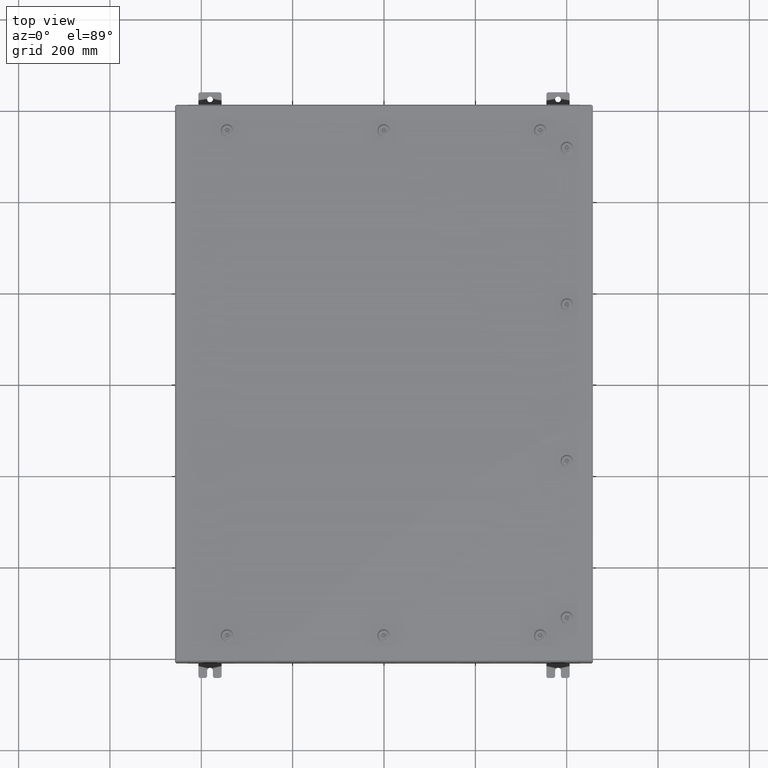
[diagram: clean part render]
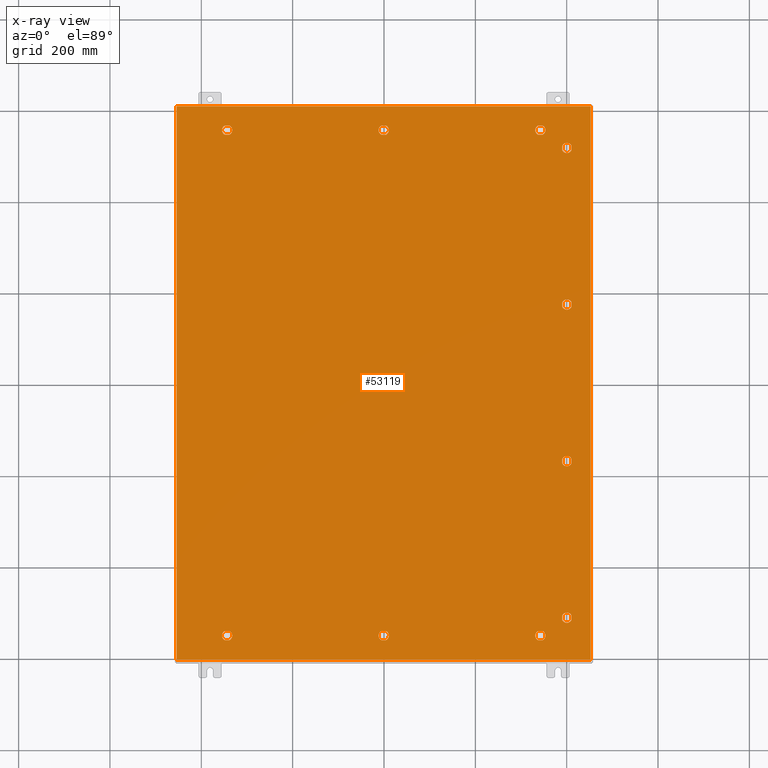
[diagram: x-ray — body ghosted, one internal face saturated and labeled with its STEP entity id]
A machine part, top view, then the same camera in x-ray: the body is ghosted and one INTERNAL B-rep face — a face not visible from any outside direction — is saturated and labeled: STEP entity #53119.
In plain terms, the highlighted planar face has unit normal (0, 0, -1).
Its self-contained STEP definition (entity closure, byte-faithful):
#118 = CARTESIAN_POINT ( 'NONE',  ( 13.30054762473209400, 22.18280000000000000, -0.07470000000000000300 ) ) ;
#576 = CIRCLE ( 'NONE', #50289, 0.4424999999999983400 ) ;
#693 = ORIENTED_EDGE ( 'NONE', *, *, #51285, .T. ) ;
#894 = CARTESIAN_POINT ( 'NONE',  ( 17.84980000000000200, 23.84980000000000900, -0.07469999999999804600 ) ) ;
#898 = CARTESIAN_POINT ( 'NONE',  ( -13.49999999999998600, -21.78780000000000800, -0.07470000000000003000 ) ) ;
#926 = EDGE_CURVE ( 'NONE', #6399, #20693, #43322, .T. ) ;
#997 = VERTEX_POINT ( 'NONE', #16040 ) ;
#1005 = EDGE_CURVE ( 'NONE', #35302, #9886, #10050, .T. ) ;
#1017 = DIRECTION ( 'NONE',  ( -0.0000000000000000000, -0.0000000000000000000, 1.000000000000000000 ) ) ;
#1114 = CARTESIAN_POINT ( 'NONE',  ( 15.39280000000002200, 20.44945237526790300, -0.07470000000000003000 ) ) ;
#1698 = EDGE_CURVE ( 'NONE', #50904, #28340, #21644, .T. ) ;
#1716 = CARTESIAN_POINT ( 'NONE',  ( 15.39280000000002800, -20.44945237526790300, -0.07470000000000000300 ) ) ;
#2137 = ORIENTED_EDGE ( 'NONE', *, *, #56101, .T. ) ;
#2264 = AXIS2_PLACEMENT_3D ( 'NONE', #49831, #18072, #55144 ) ;
#3138 = CARTESIAN_POINT ( 'NONE',  ( 16.18280000000001500, 20.05054762473213300, -0.07470000000000003000 ) ) ;
#3294 = EDGE_CURVE ( 'NONE', #31489, #39283, #47285, .T. ) ;
#3396 = CARTESIAN_POINT ( 'NONE',  ( 16.18280000000001500, -20.44945237526789600, -0.07470000000000003000 ) ) ;
#3532 = FACE_BOUND ( 'NONE', #34064, .T. ) ;
#3757 = CARTESIAN_POINT ( 'NONE',  ( 15.78780000000001000, 6.750000000000014200, -0.07470000000000003000 ) ) ;
#4213 = VERTEX_POINT ( 'NONE', #21417 ) ;
#4220 = EDGE_CURVE ( 'NONE', #20693, #45547, #17337, .T. ) ;
#4327 = LINE ( 'NONE', #21996, #30979 ) ;
#4363 = DIRECTION ( 'NONE',  ( -0.0000000000000000000, -0.0000000000000000000, 1.000000000000000000 ) ) ;
#4378 = AXIS2_PLACEMENT_3D ( 'NONE', #52407, #20655, #57747 ) ;
#4548 = AXIS2_PLACEMENT_3D ( 'NONE', #36226, #4363, #41554 ) ;
#4618 = EDGE_CURVE ( 'NONE', #19191, #63562, #43058, .T. ) ;
#4887 = PLANE ( 'NONE',  #58248 ) ;
#5031 = ORIENTED_EDGE ( 'NONE', *, *, #1005, .T. ) ;
#5147 = CARTESIAN_POINT ( 'NONE',  ( -13.30054762473210400, -21.39280000000001500, -0.07470000000000003000 ) ) ;
#5186 = FACE_BOUND ( 'NONE', #46680, .T. ) ;
#5246 = CARTESIAN_POINT ( 'NONE',  ( 13.49999999999998600, 21.78780000000000400, -0.07470000000000003000 ) ) ;
#5261 = CARTESIAN_POINT ( 'NONE',  ( -0.1994523752678689600, 21.39280000000001200, -0.07470000000000003000 ) ) ;
#5414 = DIRECTION ( 'NONE',  ( -0.0000000000000000000, -0.0000000000000000000, 1.000000000000000000 ) ) ;
#5461 = CIRCLE ( 'NONE', #68524, 0.4424999999999961700 ) ;
#5474 = CARTESIAN_POINT ( 'NONE',  ( 0.1994523752678995500, 21.39280000000001200, -0.07470000000000003000 ) ) ;
#5600 = ORIENTED_EDGE ( 'NONE', *, *, #52427, .T. ) ;
#5697 = AXIS2_PLACEMENT_3D ( 'NONE', #11630, #48765, #16985 ) ;
#5839 = EDGE_LOOP ( 'NONE', ( #26656, #18586, #39259, #67918 ) ) ;
#6031 = CARTESIAN_POINT ( 'NONE',  ( -13.30054762473210200, 21.39280000000001200, -0.07470000000000003000 ) ) ;
#6201 = AXIS2_PLACEMENT_3D ( 'NONE', #5246, #42447, #10606 ) ;
#6241 = DIRECTION ( 'NONE',  ( -1.000000000000000000, 0.0000000000000000000, 0.0000000000000000000 ) ) ;
#6256 = VERTEX_POINT ( 'NONE', #30214 ) ;
#6399 = VERTEX_POINT ( 'NONE', #68203 ) ;
#6496 = CARTESIAN_POINT ( 'NONE',  ( 13.30054762473210400, -21.39280000000001200, -0.07470000000000003000 ) ) ;
#6544 = VERTEX_POINT ( 'NONE', #49621 ) ;
#6591 = DIRECTION ( 'NONE',  ( -0.0000000000000000000, -0.0000000000000000000, 1.000000000000000000 ) ) ;
#6898 = LINE ( 'NONE', #65947, #33551 ) ;
#6978 = ORIENTED_EDGE ( 'NONE', *, *, #27407, .T. ) ;
#7052 = ORIENTED_EDGE ( 'NONE', *, *, #52000, .T. ) ;
#7072 = DIRECTION ( 'NONE',  ( -0.0000000000000000000, -0.0000000000000000000, 1.000000000000000000 ) ) ;
#7169 = CARTESIAN_POINT ( 'NONE',  ( 16.18280000000000700, 6.949452375267900300, -0.07470000000000000300 ) ) ;
#7281 = EDGE_CURVE ( 'NONE', #44440, #38383, #576, .T. ) ;
#7517 = VECTOR ( 'NONE', #63209, 39.37007874015748100 ) ;
#7828 = DIRECTION ( 'NONE',  ( -1.095739467627835000E-014, -1.000000000000000000, 0.0000000000000000000 ) ) ;
#8290 = CARTESIAN_POINT ( 'NONE',  ( 16.18280000000000700, -6.550547624732131700, -0.07470000000000003000 ) ) ;
#8489 = EDGE_CURVE ( 'NONE', #9886, #19191, #36297, .T. ) ;
#8534 = DIRECTION ( 'NONE',  ( -0.0000000000000000000, -0.0000000000000000000, 1.000000000000000000 ) ) ;
#8806 = CARTESIAN_POINT ( 'NONE',  ( 16.18280000000001100, 20.44945237526789600, -0.07470000000000000300 ) ) ;
#9121 = DIRECTION ( 'NONE',  ( -1.000000000000000000, 2.469467112916857400E-015, 0.0000000000000000000 ) ) ;
#9213 = CIRCLE ( 'NONE', #55199, 0.4424999999999961700 ) ;
#9513 = DIRECTION ( 'NONE',  ( -0.0000000000000000000, -0.0000000000000000000, 1.000000000000000000 ) ) ;
#9743 = VERTEX_POINT ( 'NONE', #65859 ) ;
#9747 = ORIENTED_EDGE ( 'NONE', *, *, #32311, .T. ) ;
#9819 = ORIENTED_EDGE ( 'NONE', *, *, #27081, .T. ) ;
#9886 = VERTEX_POINT ( 'NONE', #8290 ) ;
#9970 = CIRCLE ( 'NONE', #4378, 0.4424999999999983400 ) ;
#10005 = EDGE_CURVE ( 'NONE', #19665, #6256, #66018, .T. ) ;
#10050 = LINE ( 'NONE', #64058, #24222 ) ;
#10302 = LINE ( 'NONE', #36376, #51016 ) ;
#10606 = DIRECTION ( 'NONE',  ( -1.000000000000000000, 0.0000000000000000000, 0.0000000000000000000 ) ) ;
#11116 = CARTESIAN_POINT ( 'NONE',  ( 15.78780000000001800, -20.25000000000001400, -0.07470000000000003000 ) ) ;
#11121 = CARTESIAN_POINT ( 'NONE',  ( 16.18280000000000400, -6.949452375267900300, -0.07470000000000003000 ) ) ;
#11265 = ORIENTED_EDGE ( 'NONE', *, *, #25221, .T. ) ;
#11443 = DIRECTION ( 'NONE',  ( -1.000000000000000000, -9.877868451667478400E-015, 0.0000000000000000000 ) ) ;
#11630 = CARTESIAN_POINT ( 'NONE',  ( -13.49999999999998600, -21.78780000000000800, -0.07470000000000003000 ) ) ;
#12010 = VERTEX_POINT ( 'NONE', #34243 ) ;
#12026 = CIRCLE ( 'NONE', #32867, 0.4424999999999972800 ) ;
#12199 = EDGE_LOOP ( 'NONE', ( #50229, #67184, #32986, #5031 ) ) ;
#12288 = DIRECTION ( 'NONE',  ( -5.478697338139235000E-015, 1.000000000000000000, 0.0000000000000000000 ) ) ;
#12373 = CIRCLE ( 'NONE', #6201, 0.4424999999999961700 ) ;
#12708 = DIRECTION ( 'NONE',  ( -1.000000000000000000, 1.095739467627836300E-014, 0.0000000000000000000 ) ) ;
#12726 = ORIENTED_EDGE ( 'NONE', *, *, #52195, .T. ) ;
#12943 = CARTESIAN_POINT ( 'NONE',  ( 13.49999999999998600, -21.78780000000000400, -0.07470000000000003000 ) ) ;
#13127 = AXIS2_PLACEMENT_3D ( 'NONE', #38930, #7072, #44268 ) ;
#13270 = EDGE_CURVE ( 'NONE', #17480, #33218, #41752, .T. ) ;
#13364 = DIRECTION ( 'NONE',  ( -1.000000000000000000, 1.095739467627832000E-014, 0.0000000000000000000 ) ) ;
#13626 = VECTOR ( 'NONE', #37797, 39.37007874015748100 ) ;
#13700 = EDGE_CURVE ( 'NONE', #21605, #42336, #42556, .T. ) ;
#14012 = VECTOR ( 'NONE', #52965, 39.37007874015748100 ) ;
#14396 = VECTOR ( 'NONE', #35281, 39.37007874015748100 ) ;
#14903 = CARTESIAN_POINT ( 'NONE',  ( 0.4425000000000125500, 21.78780000000000400, -0.07470000000000003000 ) ) ;
#14942 = AXIS2_PLACEMENT_3D ( 'NONE', #898, #38086, #6241 ) ;
#15083 = LINE ( 'NONE', #6031, #55773 ) ;
#15550 = EDGE_CURVE ( 'NONE', #63562, #35302, #50899, .T. ) ;
#15555 = ORIENTED_EDGE ( 'NONE', *, *, #10005, .T. ) ;
#15631 = LINE ( 'NONE', #17360, #43902 ) ;
#15778 = EDGE_CURVE ( 'NONE', #6544, #58645, #55966, .T. ) ;
#16040 = CARTESIAN_POINT ( 'NONE',  ( 17.84980000000000200, -23.84979999999999800, -0.07470000000000000300 ) ) ;
#16054 = LINE ( 'NONE', #3396, #14396 ) ;
#16372 = VECTOR ( 'NONE', #13364, 39.37007874015748100 ) ;
#16441 = CIRCLE ( 'NONE', #14942, 0.4424999999999961700 ) ;
#16474 = DIRECTION ( 'NONE',  ( -1.000000000000000000, 0.0000000000000000000, 0.0000000000000000000 ) ) ;
#16525 = EDGE_CURVE ( 'NONE', #19251, #12010, #64200, .T. ) ;
#16848 = VERTEX_POINT ( 'NONE', #29508 ) ;
#16937 = ORIENTED_EDGE ( 'NONE', *, *, #15778, .T. ) ;
#16985 = DIRECTION ( 'NONE',  ( -1.000000000000000000, 0.0000000000000000000, 0.0000000000000000000 ) ) ;
#17337 = LINE ( 'NONE', #58287, #14012 ) ;
#17360 = CARTESIAN_POINT ( 'NONE',  ( 15.39280000000002800, -20.44945237526790300, -0.07470000000000003000 ) ) ;
#17414 = CARTESIAN_POINT ( 'NONE',  ( 13.69945237526786900, -22.18280000000000400, -0.07470000000000003000 ) ) ;
#17480 = VERTEX_POINT ( 'NONE', #58184 ) ;
#17656 = EDGE_CURVE ( 'NONE', #4213, #997, #4327, .T. ) ;
#17685 = FACE_BOUND ( 'NONE', #47716, .T. ) ;
#17728 = CIRCLE ( 'NONE', #51620, 0.4424999999999983400 ) ;
#18072 = DIRECTION ( 'NONE',  ( -0.0000000000000000000, -0.0000000000000000000, 1.000000000000000000 ) ) ;
#18322 = VERTEX_POINT ( 'NONE', #36515 ) ;
#18336 = DIRECTION ( 'NONE',  ( -1.000000000000000000, 0.0000000000000000000, 0.0000000000000000000 ) ) ;
#18385 = CARTESIAN_POINT ( 'NONE',  ( 15.39280000000002200, -20.05054762473213300, -0.07470000000000003000 ) ) ;
#18586 = ORIENTED_EDGE ( 'NONE', *, *, #17656, .F. ) ;
#18811 = CARTESIAN_POINT ( 'NONE',  ( -13.49999999999998600, 21.78780000000000400, -0.07470000000000003000 ) ) ;
#18868 = ORIENTED_EDGE ( 'NONE', *, *, #50906, .T. ) ;
#19019 = ORIENTED_EDGE ( 'NONE', *, *, #34710, .T. ) ;
#19191 = VERTEX_POINT ( 'NONE', #53203 ) ;
#19198 = CARTESIAN_POINT ( 'NONE',  ( 1.529834876451987200E-014, -21.78780000000000400, -0.07470000000000003000 ) ) ;
#19251 = VERTEX_POINT ( 'NONE', #43038 ) ;
#19387 = FACE_BOUND ( 'NONE', #23863, .T. ) ;
#19539 = LINE ( 'NONE', #6496, #31964 ) ;
#19665 = VERTEX_POINT ( 'NONE', #14903 ) ;
#19676 = VECTOR ( 'NONE', #52613, 39.37007874015748100 ) ;
#20553 = AXIS2_PLACEMENT_3D ( 'NONE', #57111, #25357, #62452 ) ;
#20577 = CARTESIAN_POINT ( 'NONE',  ( 13.30054762473210200, 21.39280000000001200, -0.07470000000000003000 ) ) ;
#20644 = ORIENTED_EDGE ( 'NONE', *, *, #63918, .T. ) ;
#20655 = DIRECTION ( 'NONE',  ( -0.0000000000000000000, -0.0000000000000000000, 1.000000000000000000 ) ) ;
#20693 = VERTEX_POINT ( 'NONE', #39908 ) ;
#21074 = ORIENTED_EDGE ( 'NONE', *, *, #7281, .T. ) ;
#21252 = LINE ( 'NONE', #1114, #33746 ) ;
#21314 = VERTEX_POINT ( 'NONE', #8806 ) ;
#21417 = CARTESIAN_POINT ( 'NONE',  ( -17.84979999999999800, -23.84979999999999800, -0.07470000000000000300 ) ) ;
#21495 = ORIENTED_EDGE ( 'NONE', *, *, #31507, .T. ) ;
#21605 = VERTEX_POINT ( 'NONE', #53084 ) ;
#21644 = LINE ( 'NONE', #26103, #7517 ) ;
#21819 = CARTESIAN_POINT ( 'NONE',  ( 15.39280000000001900, 6.949452375267904700, -0.07470000000000003000 ) ) ;
#21860 = CARTESIAN_POINT ( 'NONE',  ( -13.05749999999998900, 21.78780000000000400, -0.07470000000000003000 ) ) ;
#21996 = CARTESIAN_POINT ( 'NONE',  ( -17.84979999999999800, -23.84980000000000200, -0.07469999999999804600 ) ) ;
#22807 = CARTESIAN_POINT ( 'NONE',  ( -17.84979999999999500, 23.84980000000000900, -0.07470000000000129300 ) ) ;
#23412 = CARTESIAN_POINT ( 'NONE',  ( 0.1994523752679067700, 22.18280000000000000, -0.07470000000000003000 ) ) ;
#23863 = EDGE_LOOP ( 'NONE', ( #20644, #7052, #44761, #28893 ) ) ;
#23937 = DIRECTION ( 'NONE',  ( 1.000000000000000000, 0.0000000000000000000, 0.0000000000000000000 ) ) ;
#24017 = VERTEX_POINT ( 'NONE', #67947 ) ;
#24222 = VECTOR ( 'NONE', #32304, 39.37007874015748100 ) ;
#24395 = CARTESIAN_POINT ( 'NONE',  ( 1.529834876451987200E-014, 21.78780000000000400, -0.07470000000000003000 ) ) ;
#24437 = AXIS2_PLACEMENT_3D ( 'NONE', #29956, #67040, #35299 ) ;
#24530 = DIRECTION ( 'NONE',  ( -1.000000000000000000, 9.877868451667453200E-015, 0.0000000000000000000 ) ) ;
#24683 = ORIENTED_EDGE ( 'NONE', *, *, #58083, .T. ) ;
#24701 = ORIENTED_EDGE ( 'NONE', *, *, #34854, .T. ) ;
#24884 = VECTOR ( 'NONE', #37337, 39.37007874015748100 ) ;
#24989 = DIRECTION ( 'NONE',  ( -1.000000000000000000, 0.0000000000000000000, 0.0000000000000000000 ) ) ;
#25101 = DIRECTION ( 'NONE',  ( -1.000000000000000000, 0.0000000000000000000, 0.0000000000000000000 ) ) ;
#25152 = VERTEX_POINT ( 'NONE', #54025 ) ;
#25221 = EDGE_CURVE ( 'NONE', #16848, #27234, #5461, .T. ) ;
#25357 = DIRECTION ( 'NONE',  ( -0.0000000000000000000, -0.0000000000000000000, 1.000000000000000000 ) ) ;
#25491 = CARTESIAN_POINT ( 'NONE',  ( 1.529834876451987200E-014, 21.78780000000000400, -0.07470000000000003000 ) ) ;
#25553 = CARTESIAN_POINT ( 'NONE',  ( 13.69945237526786900, 21.39280000000001200, -0.07470000000000003000 ) ) ;
#25734 = VECTOR ( 'NONE', #12288, 39.37007874015748100 ) ;
#25787 = VECTOR ( 'NONE', #12708, 39.37007874015748100 ) ;
#26066 = EDGE_CURVE ( 'NONE', #25152, #33864, #60203, .T. ) ;
#26103 = CARTESIAN_POINT ( 'NONE',  ( 0.1994523752679067700, -22.18280000000000000, -0.07470000000000003000 ) ) ;
#26274 = CARTESIAN_POINT ( 'NONE',  ( 0.0000000000000000000, 0.0000000000000000000, -0.07470000000000000300 ) ) ;
#26375 = CARTESIAN_POINT ( 'NONE',  ( -13.30054762473209500, -22.18280000000000400, -0.07470000000000000300 ) ) ;
#26420 = ORIENTED_EDGE ( 'NONE', *, *, #1698, .T. ) ;
#26656 = ORIENTED_EDGE ( 'NONE', *, *, #33141, .F. ) ;
#26766 = DIRECTION ( 'NONE',  ( -0.0000000000000000000, -0.0000000000000000000, 1.000000000000000000 ) ) ;
#26983 = CARTESIAN_POINT ( 'NONE',  ( 0.4425000000000125500, -21.78780000000000400, -0.07470000000000003000 ) ) ;
#27081 = EDGE_CURVE ( 'NONE', #65210, #6399, #19539, .T. ) ;
#27234 = VERTEX_POINT ( 'NONE', #18385 ) ;
#27281 = VECTOR ( 'NONE', #24989, 39.37007874015748100 ) ;
#27341 = DIRECTION ( 'NONE',  ( 1.000000000000000000, -0.0000000000000000000, -0.0000000000000000000 ) ) ;
#27407 = EDGE_CURVE ( 'NONE', #55666, #65210, #30081, .T. ) ;
#27617 = CARTESIAN_POINT ( 'NONE',  ( 15.78780000000001500, 20.25000000000001400, -0.07470000000000003000 ) ) ;
#27824 = CIRCLE ( 'NONE', #59027, 0.4424999999999961700 ) ;
#27825 = CARTESIAN_POINT ( 'NONE',  ( 15.78780000000001800, -20.25000000000001400, -0.07470000000000003000 ) ) ;
#28020 = DIRECTION ( 'NONE',  ( 1.095739467627844000E-014, -1.000000000000000000, 0.0000000000000000000 ) ) ;
#28340 = VERTEX_POINT ( 'NONE', #37449 ) ;
#28449 = CARTESIAN_POINT ( 'NONE',  ( 1.529834876451987200E-014, -21.78780000000000400, -0.07470000000000003000 ) ) ;
#28770 = CARTESIAN_POINT ( 'NONE',  ( 15.39280000000001400, 6.550547624732131700, -0.07470000000000003000 ) ) ;
#28893 = ORIENTED_EDGE ( 'NONE', *, *, #3294, .T. ) ;
#29083 = CARTESIAN_POINT ( 'NONE',  ( -13.05749999999999000, -21.78780000000000800, -0.07470000000000003000 ) ) ;
#29161 = ORIENTED_EDGE ( 'NONE', *, *, #4220, .T. ) ;
#29199 = CARTESIAN_POINT ( 'NONE',  ( -13.30054762473209400, 22.18280000000000000, -0.07470000000000003000 ) ) ;
#29397 = VERTEX_POINT ( 'NONE', #55627 ) ;
#29508 = CARTESIAN_POINT ( 'NONE',  ( 16.18280000000001800, -20.05054762473213300, -0.07470000000000003000 ) ) ;
#29746 = DIRECTION ( 'NONE',  ( -1.000000000000000000, 9.877868451667453200E-015, 0.0000000000000000000 ) ) ;
#29956 = CARTESIAN_POINT ( 'NONE',  ( 15.78780000000000800, -6.750000000000014200, -0.07470000000000003000 ) ) ;
#30081 = CIRCLE ( 'NONE', #4548, 0.4424999999999983400 ) ;
#30214 = CARTESIAN_POINT ( 'NONE',  ( 0.1994523752679049900, 22.18280000000000000, -0.07470000000000003000 ) ) ;
#30339 = CARTESIAN_POINT ( 'NONE',  ( -13.30054762473210400, -21.39280000000001500, -0.07470000000000003000 ) ) ;
#30341 = VECTOR ( 'NONE', #65039, 39.37007874015748100 ) ;
#30533 = LINE ( 'NONE', #29199, #16372 ) ;
#30630 = VECTOR ( 'NONE', #61541, 39.37007874015748100 ) ;
#30831 = DIRECTION ( 'NONE',  ( -1.000000000000000000, 0.0000000000000000000, 0.0000000000000000000 ) ) ;
#30979 = VECTOR ( 'NONE', #27341, 39.37007874015748100 ) ;
#31118 = EDGE_CURVE ( 'NONE', #27234, #37159, #15631, .T. ) ;
#31319 = CIRCLE ( 'NONE', #35447, 0.4424999999999961700 ) ;
#31489 = VERTEX_POINT ( 'NONE', #21819 ) ;
#31507 = EDGE_CURVE ( 'NONE', #47799, #40107, #16441, .T. ) ;
#31565 = VERTEX_POINT ( 'NONE', #38319 ) ;
#31632 = DIRECTION ( 'NONE',  ( -1.000000000000000000, 0.0000000000000000000, -0.0000000000000000000 ) ) ;
#31685 = VERTEX_POINT ( 'NONE', #55191 ) ;
#31813 = FACE_BOUND ( 'NONE', #48481, .T. ) ;
#31846 = DIRECTION ( 'NONE',  ( -0.0000000000000000000, -0.0000000000000000000, 1.000000000000000000 ) ) ;
#31964 = VECTOR ( 'NONE', #38350, 39.37007874015748100 ) ;
#32304 = DIRECTION ( 'NONE',  ( 5.478697338139235000E-015, 1.000000000000000000, 0.0000000000000000000 ) ) ;
#32311 = EDGE_CURVE ( 'NONE', #9743, #31685, #30533, .T. ) ;
#32867 = AXIS2_PLACEMENT_3D ( 'NONE', #28449, #65556, #33816 ) ;
#32886 = CARTESIAN_POINT ( 'NONE',  ( -13.49999999999998600, 21.78780000000000400, -0.07470000000000003000 ) ) ;
#32982 = DIRECTION ( 'NONE',  ( -1.095739467627844000E-014, -1.000000000000000000, 0.0000000000000000000 ) ) ;
#32986 = ORIENTED_EDGE ( 'NONE', *, *, #15550, .T. ) ;
#32990 = DIRECTION ( 'NONE',  ( -1.000000000000000000, 0.0000000000000000000, 0.0000000000000000000 ) ) ;
#33088 = ORIENTED_EDGE ( 'NONE', *, *, #67862, .T. ) ;
#33141 = EDGE_CURVE ( 'NONE', #997, #19251, #47851, .T. ) ;
#33213 = DIRECTION ( 'NONE',  ( -1.000000000000000000, 0.0000000000000000000, 0.0000000000000000000 ) ) ;
#33218 = VERTEX_POINT ( 'NONE', #5261 ) ;
#33221 = VECTOR ( 'NONE', #7828, 39.37007874015748100 ) ;
#33551 = VECTOR ( 'NONE', #55487, 39.37007874015748100 ) ;
#33746 = VECTOR ( 'NONE', #32982, 39.37007874015748100 ) ;
#33816 = DIRECTION ( 'NONE',  ( -1.000000000000000000, 0.0000000000000000000, 0.0000000000000000000 ) ) ;
#33864 = VERTEX_POINT ( 'NONE', #3138 ) ;
#33996 = CIRCLE ( 'NONE', #53967, 0.4424999999999972800 ) ;
#34064 = EDGE_LOOP ( 'NONE', ( #19019, #2137, #693, #67622, #9747 ) ) ;
#34089 = CARTESIAN_POINT ( 'NONE',  ( -13.69945237526786900, -22.18280000000000700, -0.07470000000000003000 ) ) ;
#34243 = CARTESIAN_POINT ( 'NONE',  ( -17.84979999999999500, 23.84980000000000200, -0.07470000000000000300 ) ) ;
#34539 = CIRCLE ( 'NONE', #37175, 0.4424999999999983400 ) ;
#34609 = AXIS2_PLACEMENT_3D ( 'NONE', #41357, #9513, #46666 ) ;
#34641 = CARTESIAN_POINT ( 'NONE',  ( 13.30054762473210200, 21.39280000000001200, -0.07470000000000003000 ) ) ;
#34710 = EDGE_CURVE ( 'NONE', #31685, #44377, #27824, .T. ) ;
#34854 = EDGE_CURVE ( 'NONE', #28340, #41757, #12026, .T. ) ;
#35085 = CIRCLE ( 'NONE', #67939, 0.4424999999999983400 ) ;
#35281 = DIRECTION ( 'NONE',  ( 5.478697338139280800E-015, 1.000000000000000000, 0.0000000000000000000 ) ) ;
#35299 = DIRECTION ( 'NONE',  ( -1.000000000000000000, 0.0000000000000000000, 0.0000000000000000000 ) ) ;
#35302 = VERTEX_POINT ( 'NONE', #11121 ) ;
#35428 = EDGE_CURVE ( 'NONE', #49095, #25152, #21252, .T. ) ;
#35447 = AXIS2_PLACEMENT_3D ( 'NONE', #27617, #64741, #32990 ) ;
#36040 = VECTOR ( 'NONE', #64506, 39.37007874015748100 ) ;
#36065 = AXIS2_PLACEMENT_3D ( 'NONE', #24395, #61489, #29746 ) ;
#36152 = DIRECTION ( 'NONE',  ( -1.000000000000000000, -1.095739467627832000E-014, 0.0000000000000000000 ) ) ;
#36226 = CARTESIAN_POINT ( 'NONE',  ( 13.49999999999998600, -21.78780000000000400, -0.07470000000000003000 ) ) ;
#36297 = CIRCLE ( 'NONE', #2264, 0.4424999999999983400 ) ;
#36376 = CARTESIAN_POINT ( 'NONE',  ( 13.30054762473209400, 22.18280000000000000, -0.07470000000000003000 ) ) ;
#36515 = CARTESIAN_POINT ( 'NONE',  ( 16.18280000000001500, -20.44945237526789600, -0.07470000000000003000 ) ) ;
#37028 = EDGE_CURVE ( 'NONE', #31565, #44440, #10302, .T. ) ;
#37159 = VERTEX_POINT ( 'NONE', #1716 ) ;
#37164 = ORIENTED_EDGE ( 'NONE', *, *, #35428, .T. ) ;
#37175 = AXIS2_PLACEMENT_3D ( 'NONE', #18811, #55898, #25101 ) ;
#37237 = VECTOR ( 'NONE', #23937, 39.37007874015748100 ) ;
#37280 = CARTESIAN_POINT ( 'NONE',  ( 13.49999999999998600, 21.78780000000000400, -0.07470000000000003000 ) ) ;
#37337 = DIRECTION ( 'NONE',  ( 1.000000000000000000, 0.0000000000000000000, 0.0000000000000000000 ) ) ;
#37449 = CARTESIAN_POINT ( 'NONE',  ( 0.1994523752679054600, -22.18280000000000400, -0.07470000000000000300 ) ) ;
#37523 = CARTESIAN_POINT ( 'NONE',  ( 13.69945237526787100, -21.39280000000001200, -0.07470000000000003000 ) ) ;
#37797 = DIRECTION ( 'NONE',  ( -1.000000000000000000, 0.0000000000000000000, 0.0000000000000000000 ) ) ;
#38086 = DIRECTION ( 'NONE',  ( -0.0000000000000000000, -0.0000000000000000000, 1.000000000000000000 ) ) ;
#38203 = EDGE_CURVE ( 'NONE', #18322, #16848, #16054, .T. ) ;
#38207 = CARTESIAN_POINT ( 'NONE',  ( -13.30054762473210200, 21.39280000000001200, -0.07470000000000000300 ) ) ;
#38214 = DIRECTION ( 'NONE',  ( -1.000000000000000000, 0.0000000000000000000, 0.0000000000000000000 ) ) ;
#38319 = CARTESIAN_POINT ( 'NONE',  ( 13.69945237526786700, 22.18280000000000400, -0.07470000000000003000 ) ) ;
#38350 = DIRECTION ( 'NONE',  ( -1.000000000000000000, 0.0000000000000000000, 0.0000000000000000000 ) ) ;
#38383 = VERTEX_POINT ( 'NONE', #20577 ) ;
#38431 = CARTESIAN_POINT ( 'NONE',  ( 13.49999999999998600, 21.78780000000000400, -0.07470000000000003000 ) ) ;
#38930 = CARTESIAN_POINT ( 'NONE',  ( 1.529834876451987200E-014, -21.78780000000000400, -0.07470000000000003000 ) ) ;
#39259 = ORIENTED_EDGE ( 'NONE', *, *, #46222, .F. ) ;
#39283 = VERTEX_POINT ( 'NONE', #28770 ) ;
#39675 = CARTESIAN_POINT ( 'NONE',  ( 15.39280000000001900, 6.949452375267904700, -0.07470000000000003000 ) ) ;
#39858 = ORIENTED_EDGE ( 'NONE', *, *, #43728, .T. ) ;
#39908 = CARTESIAN_POINT ( 'NONE',  ( 13.30054762473209500, -22.18280000000000000, -0.07470000000000003000 ) ) ;
#39985 = CARTESIAN_POINT ( 'NONE',  ( 15.39280000000002200, 20.44945237526790300, -0.07470000000000003000 ) ) ;
#40107 = VERTEX_POINT ( 'NONE', #29083 ) ;
#40280 = EDGE_LOOP ( 'NONE', ( #62816, #50152, #12726, #15555, #24683 ) ) ;
#40369 = CARTESIAN_POINT ( 'NONE',  ( 15.78780000000001000, 6.750000000000014200, -0.07470000000000003000 ) ) ;
#40960 = DIRECTION ( 'NONE',  ( -0.0000000000000000000, -0.0000000000000000000, 1.000000000000000000 ) ) ;
#41044 = ORIENTED_EDGE ( 'NONE', *, *, #60771, .T. ) ;
#41306 = LINE ( 'NONE', #62011, #42957 ) ;
#41324 = ORIENTED_EDGE ( 'NONE', *, *, #55315, .T. ) ;
#41354 = EDGE_CURVE ( 'NONE', #41757, #6544, #33996, .T. ) ;
#41357 = CARTESIAN_POINT ( 'NONE',  ( -13.49999999999998600, -21.78780000000000800, -0.07470000000000003000 ) ) ;
#41381 = EDGE_LOOP ( 'NONE', ( #64264, #59267, #21495, #18868, #43985 ) ) ;
#41554 = DIRECTION ( 'NONE',  ( -1.000000000000000000, 0.0000000000000000000, 0.0000000000000000000 ) ) ;
#41752 = CIRCLE ( 'NONE', #65653, 0.4424999999999969000 ) ;
#41757 = VERTEX_POINT ( 'NONE', #26983 ) ;
#41944 = ORIENTED_EDGE ( 'NONE', *, *, #26066, .T. ) ;
#42314 = LINE ( 'NONE', #5474, #24884 ) ;
#42336 = VERTEX_POINT ( 'NONE', #34089 ) ;
#42438 = CARTESIAN_POINT ( 'NONE',  ( -13.69945237526786900, 21.39280000000001200, -0.07470000000000003000 ) ) ;
#42447 = DIRECTION ( 'NONE',  ( -0.0000000000000000000, -0.0000000000000000000, 1.000000000000000000 ) ) ;
#42556 = CIRCLE ( 'NONE', #34609, 0.4424999999999983400 ) ;
#42616 = DIRECTION ( 'NONE',  ( -1.000000000000000000, 0.0000000000000000000, 0.0000000000000000000 ) ) ;
#42684 = CARTESIAN_POINT ( 'NONE',  ( 0.1994523752678995500, -21.39280000000001200, -0.07470000000000003000 ) ) ;
#42957 = VECTOR ( 'NONE', #67352, 39.37007874015748100 ) ;
#43038 = CARTESIAN_POINT ( 'NONE',  ( 17.84980000000000200, 23.84980000000000200, -0.07470000000000000300 ) ) ;
#43058 = LINE ( 'NONE', #61316, #30630 ) ;
#43322 = CIRCLE ( 'NONE', #67871, 0.4424999999999961700 ) ;
#43399 = EDGE_CURVE ( 'NONE', #42336, #47799, #41306, .T. ) ;
#43609 = ORIENTED_EDGE ( 'NONE', *, *, #59703, .T. ) ;
#43728 = EDGE_CURVE ( 'NONE', #21314, #49095, #31319, .T. ) ;
#43773 = DIRECTION ( 'NONE',  ( -1.000000000000000000, 0.0000000000000000000, 0.0000000000000000000 ) ) ;
#43854 = ORIENTED_EDGE ( 'NONE', *, *, #926, .T. ) ;
#43902 = VECTOR ( 'NONE', #28020, 39.37007874015748100 ) ;
#43985 = ORIENTED_EDGE ( 'NONE', *, *, #59995, .T. ) ;
#44123 = CARTESIAN_POINT ( 'NONE',  ( 16.18280000000000700, 6.949452375267900300, -0.07470000000000003000 ) ) ;
#44268 = DIRECTION ( 'NONE',  ( -1.000000000000000000, 0.0000000000000000000, 0.0000000000000000000 ) ) ;
#44274 = FACE_OUTER_BOUND ( 'NONE', #5839, .T. ) ;
#44377 = VERTEX_POINT ( 'NONE', #42438 ) ;
#44435 = LINE ( 'NONE', #22807, #30341 ) ;
#44440 = VERTEX_POINT ( 'NONE', #118 ) ;
#44761 = ORIENTED_EDGE ( 'NONE', *, *, #66369, .T. ) ;
#44764 = LINE ( 'NONE', #30339, #27281 ) ;
#45357 = CARTESIAN_POINT ( 'NONE',  ( 13.94249999999998500, -21.78780000000000400, -0.07470000000000003000 ) ) ;
#45547 = VERTEX_POINT ( 'NONE', #17414 ) ;
#45660 = ORIENTED_EDGE ( 'NONE', *, *, #37028, .T. ) ;
#45683 = EDGE_CURVE ( 'NONE', #50845, #9743, #34539, .T. ) ;
#45710 = DIRECTION ( 'NONE',  ( -1.000000000000000000, 0.0000000000000000000, 0.0000000000000000000 ) ) ;
#45938 = FACE_BOUND ( 'NONE', #41381, .T. ) ;
#46113 = ORIENTED_EDGE ( 'NONE', *, *, #49667, .T. ) ;
#46222 = EDGE_CURVE ( 'NONE', #12010, #4213, #44435, .T. ) ;
#46666 = DIRECTION ( 'NONE',  ( -1.000000000000000000, 0.0000000000000000000, 0.0000000000000000000 ) ) ;
#46680 = EDGE_LOOP ( 'NONE', ( #11265, #61394, #33088, #62736 ) ) ;
#47285 = LINE ( 'NONE', #39675, #33221 ) ;
#47569 = FACE_BOUND ( 'NONE', #57891, .T. ) ;
#47716 = EDGE_LOOP ( 'NONE', ( #5600, #41324, #45660, #21074, #41044 ) ) ;
#47799 = VERTEX_POINT ( 'NONE', #26375 ) ;
#47851 = LINE ( 'NONE', #57726, #19676 ) ;
#47888 = CARTESIAN_POINT ( 'NONE',  ( 15.39280000000001500, -6.949452375267905600, -0.07470000000000000300 ) ) ;
#48108 = VERTEX_POINT ( 'NONE', #59951 ) ;
#48139 = AXIS2_PLACEMENT_3D ( 'NONE', #25491, #62577, #30831 ) ;
#48192 = CIRCLE ( 'NONE', #5697, 0.4424999999999961700 ) ;
#48255 = DIRECTION ( 'NONE',  ( -0.0000000000000000000, -0.0000000000000000000, 1.000000000000000000 ) ) ;
#48481 = EDGE_LOOP ( 'NONE', ( #43609, #26420, #24701, #68473, #16937 ) ) ;
#48765 = DIRECTION ( 'NONE',  ( -0.0000000000000000000, -0.0000000000000000000, 1.000000000000000000 ) ) ;
#49095 = VERTEX_POINT ( 'NONE', #39985 ) ;
#49621 = CARTESIAN_POINT ( 'NONE',  ( 0.1994523752679002700, -21.39280000000001200, -0.07470000000000003000 ) ) ;
#49667 = EDGE_CURVE ( 'NONE', #45547, #55666, #35085, .T. ) ;
#49831 = CARTESIAN_POINT ( 'NONE',  ( 15.78780000000000800, -6.750000000000014200, -0.07470000000000003000 ) ) ;
#50080 = DIRECTION ( 'NONE',  ( -0.0000000000000000000, -0.0000000000000000000, 1.000000000000000000 ) ) ;
#50152 = ORIENTED_EDGE ( 'NONE', *, *, #52478, .T. ) ;
#50229 = ORIENTED_EDGE ( 'NONE', *, *, #8489, .T. ) ;
#50289 = AXIS2_PLACEMENT_3D ( 'NONE', #38431, #6591, #43773 ) ;
#50845 = VERTEX_POINT ( 'NONE', #21860 ) ;
#50899 = CIRCLE ( 'NONE', #24437, 0.4424999999999983400 ) ;
#50904 = VERTEX_POINT ( 'NONE', #53857 ) ;
#50906 = EDGE_CURVE ( 'NONE', #40107, #68873, #48192, .T. ) ;
#51016 = VECTOR ( 'NONE', #36152, 39.37007874015748100 ) ;
#51285 = EDGE_CURVE ( 'NONE', #66782, #50845, #9970, .T. ) ;
#51620 = AXIS2_PLACEMENT_3D ( 'NONE', #40369, #8534, #45710 ) ;
#51905 = CIRCLE ( 'NONE', #63563, 0.4424999999999983400 ) ;
#52000 = EDGE_CURVE ( 'NONE', #24017, #53402, #53906, .T. ) ;
#52195 = EDGE_CURVE ( 'NONE', #29397, #19665, #61411, .T. ) ;
#52407 = CARTESIAN_POINT ( 'NONE',  ( -13.49999999999998600, 21.78780000000000400, -0.07470000000000003000 ) ) ;
#52427 = EDGE_CURVE ( 'NONE', #62247, #48108, #12373, .T. ) ;
#52478 = EDGE_CURVE ( 'NONE', #33218, #29397, #42314, .T. ) ;
#52540 = FACE_BOUND ( 'NONE', #12199, .T. ) ;
#52613 = DIRECTION ( 'NONE',  ( 0.0000000000000000000, 1.000000000000000000, 0.0000000000000000000 ) ) ;
#52965 = DIRECTION ( 'NONE',  ( 1.000000000000000000, -1.095739467627832000E-014, 0.0000000000000000000 ) ) ;
#53084 = CARTESIAN_POINT ( 'NONE',  ( -13.69945237526787100, -21.39280000000001500, -0.07470000000000003000 ) ) ;
#53119 = ADVANCED_FACE ( 'NONE', ( #5186, #52540, #47569, #19387, #59989, #45938, #31813, #17685, #3532, #58324, #44274 ), #4887, .T. ) ;
#53203 = CARTESIAN_POINT ( 'NONE',  ( 15.39280000000001200, -6.550547624732131700, -0.07470000000000003000 ) ) ;
#53402 = VERTEX_POINT ( 'NONE', #7169 ) ;
#53857 = CARTESIAN_POINT ( 'NONE',  ( -0.1994523752678657700, -22.18280000000000400, -0.07470000000000003000 ) ) ;
#53906 = LINE ( 'NONE', #44123, #25734 ) ;
#53967 = AXIS2_PLACEMENT_3D ( 'NONE', #19198, #56286, #24530 ) ;
#54025 = CARTESIAN_POINT ( 'NONE',  ( 15.39280000000001900, 20.05054762473213300, -0.07470000000000003000 ) ) ;
#55144 = DIRECTION ( 'NONE',  ( -1.000000000000000000, 0.0000000000000000000, 0.0000000000000000000 ) ) ;
#55191 = CARTESIAN_POINT ( 'NONE',  ( -13.69945237526786700, 22.18280000000000400, -0.07470000000000003000 ) ) ;
#55199 = AXIS2_PLACEMENT_3D ( 'NONE', #37280, #5414, #42616 ) ;
#55315 = EDGE_CURVE ( 'NONE', #48108, #31565, #9213, .T. ) ;
#55487 = DIRECTION ( 'NONE',  ( -5.478697338139280800E-015, 1.000000000000000000, 0.0000000000000000000 ) ) ;
#55627 = CARTESIAN_POINT ( 'NONE',  ( 0.1994523752678995500, 21.39280000000001200, -0.07470000000000000300 ) ) ;
#55666 = VERTEX_POINT ( 'NONE', #45357 ) ;
#55773 = VECTOR ( 'NONE', #64520, 39.37007874015748100 ) ;
#55898 = DIRECTION ( 'NONE',  ( -0.0000000000000000000, -0.0000000000000000000, 1.000000000000000000 ) ) ;
#55966 = LINE ( 'NONE', #42684, #13626 ) ;
#56101 = EDGE_CURVE ( 'NONE', #44377, #66782, #15083, .T. ) ;
#56286 = DIRECTION ( 'NONE',  ( -0.0000000000000000000, -0.0000000000000000000, 1.000000000000000000 ) ) ;
#57111 = CARTESIAN_POINT ( 'NONE',  ( 15.78780000000001500, 20.25000000000001400, -0.07470000000000003000 ) ) ;
#57726 = CARTESIAN_POINT ( 'NONE',  ( 17.84980000000000200, -23.84980000000000200, -0.07470000000000019700 ) ) ;
#57747 = DIRECTION ( 'NONE',  ( -1.000000000000000000, 0.0000000000000000000, 0.0000000000000000000 ) ) ;
#57891 = EDGE_LOOP ( 'NONE', ( #41944, #61851, #39858, #37164 ) ) ;
#58083 = EDGE_CURVE ( 'NONE', #6256, #17480, #68102, .T. ) ;
#58184 = CARTESIAN_POINT ( 'NONE',  ( -0.1994523752678657700, 22.18280000000000400, -0.07470000000000003000 ) ) ;
#58248 = AXIS2_PLACEMENT_3D ( 'NONE', #26274, #63391, #31632 ) ;
#58287 = CARTESIAN_POINT ( 'NONE',  ( 13.30054762473209500, -22.18280000000000000, -0.07470000000000003000 ) ) ;
#58324 = FACE_BOUND ( 'NONE', #40280, .T. ) ;
#58520 = CARTESIAN_POINT ( 'NONE',  ( 1.529834876451987200E-014, 21.78780000000000400, -0.07470000000000003000 ) ) ;
#58645 = VERTEX_POINT ( 'NONE', #67887 ) ;
#59027 = AXIS2_PLACEMENT_3D ( 'NONE', #32886, #1017, #38214 ) ;
#59267 = ORIENTED_EDGE ( 'NONE', *, *, #43399, .T. ) ;
#59703 = EDGE_CURVE ( 'NONE', #58645, #50904, #62181, .T. ) ;
#59951 = CARTESIAN_POINT ( 'NONE',  ( 13.94249999999998300, 21.78780000000000400, -0.07470000000000003000 ) ) ;
#59989 = FACE_BOUND ( 'NONE', #64701, .T. ) ;
#59995 = EDGE_CURVE ( 'NONE', #68873, #21605, #44764, .T. ) ;
#60203 = CIRCLE ( 'NONE', #20553, 0.4424999999999961700 ) ;
#60771 = EDGE_CURVE ( 'NONE', #38383, #62247, #63765, .T. ) ;
#61316 = CARTESIAN_POINT ( 'NONE',  ( 15.39280000000001500, -6.949452375267904700, -0.07470000000000003000 ) ) ;
#61394 = ORIENTED_EDGE ( 'NONE', *, *, #31118, .T. ) ;
#61411 = CIRCLE ( 'NONE', #36065, 0.4424999999999972800 ) ;
#61489 = DIRECTION ( 'NONE',  ( -0.0000000000000000000, -0.0000000000000000000, 1.000000000000000000 ) ) ;
#61541 = DIRECTION ( 'NONE',  ( 1.095739467627835000E-014, -1.000000000000000000, 0.0000000000000000000 ) ) ;
#61851 = ORIENTED_EDGE ( 'NONE', *, *, #66286, .T. ) ;
#62011 = CARTESIAN_POINT ( 'NONE',  ( -13.30054762473209500, -22.18280000000000400, -0.07470000000000003000 ) ) ;
#62181 = CIRCLE ( 'NONE', #13127, 0.4424999999999969000 ) ;
#62247 = VERTEX_POINT ( 'NONE', #25553 ) ;
#62452 = DIRECTION ( 'NONE',  ( -1.000000000000000000, 0.0000000000000000000, 0.0000000000000000000 ) ) ;
#62577 = DIRECTION ( 'NONE',  ( -0.0000000000000000000, -0.0000000000000000000, 1.000000000000000000 ) ) ;
#62736 = ORIENTED_EDGE ( 'NONE', *, *, #38203, .T. ) ;
#62816 = ORIENTED_EDGE ( 'NONE', *, *, #13270, .T. ) ;
#63209 = DIRECTION ( 'NONE',  ( 1.000000000000000000, 1.095739467627836300E-014, 0.0000000000000000000 ) ) ;
#63269 = CIRCLE ( 'NONE', #67691, 0.4424999999999961700 ) ;
#63391 = DIRECTION ( 'NONE',  ( 0.0000000000000000000, 0.0000000000000000000, -1.000000000000000000 ) ) ;
#63562 = VERTEX_POINT ( 'NONE', #47888 ) ;
#63563 = AXIS2_PLACEMENT_3D ( 'NONE', #3757, #40960, #9121 ) ;
#63599 = CARTESIAN_POINT ( 'NONE',  ( 13.49999999999998600, -21.78780000000000400, -0.07470000000000003000 ) ) ;
#63765 = LINE ( 'NONE', #34641, #37237 ) ;
#63883 = DIRECTION ( 'NONE',  ( -1.000000000000000000, 0.0000000000000000000, 0.0000000000000000000 ) ) ;
#63918 = EDGE_CURVE ( 'NONE', #39283, #24017, #51905, .T. ) ;
#64058 = CARTESIAN_POINT ( 'NONE',  ( 16.18280000000000400, -6.949452375267900300, -0.07470000000000003000 ) ) ;
#64200 = LINE ( 'NONE', #894, #36040 ) ;
#64264 = ORIENTED_EDGE ( 'NONE', *, *, #13700, .T. ) ;
#64506 = DIRECTION ( 'NONE',  ( -1.000000000000000000, -0.0000000000000000000, -0.0000000000000000000 ) ) ;
#64520 = DIRECTION ( 'NONE',  ( 1.000000000000000000, 0.0000000000000000000, 0.0000000000000000000 ) ) ;
#64701 = EDGE_LOOP ( 'NONE', ( #46113, #6978, #9819, #43854, #29161 ) ) ;
#64741 = DIRECTION ( 'NONE',  ( -0.0000000000000000000, -0.0000000000000000000, 1.000000000000000000 ) ) ;
#64952 = DIRECTION ( 'NONE',  ( -0.0000000000000000000, -0.0000000000000000000, 1.000000000000000000 ) ) ;
#65039 = DIRECTION ( 'NONE',  ( 0.0000000000000000000, -1.000000000000000000, 0.0000000000000000000 ) ) ;
#65210 = VERTEX_POINT ( 'NONE', #37523 ) ;
#65556 = DIRECTION ( 'NONE',  ( -0.0000000000000000000, -0.0000000000000000000, 1.000000000000000000 ) ) ;
#65653 = AXIS2_PLACEMENT_3D ( 'NONE', #58520, #26766, #63883 ) ;
#65859 = CARTESIAN_POINT ( 'NONE',  ( -13.30054762473209400, 22.18280000000000000, -0.07470000000000003000 ) ) ;
#65947 = CARTESIAN_POINT ( 'NONE',  ( 16.18280000000001100, 20.44945237526789600, -0.07470000000000003000 ) ) ;
#66018 = CIRCLE ( 'NONE', #48139, 0.4424999999999972800 ) ;
#66286 = EDGE_CURVE ( 'NONE', #33864, #21314, #6898, .T. ) ;
#66369 = EDGE_CURVE ( 'NONE', #53402, #31489, #17728, .T. ) ;
#66782 = VERTEX_POINT ( 'NONE', #38207 ) ;
#67040 = DIRECTION ( 'NONE',  ( -0.0000000000000000000, -0.0000000000000000000, 1.000000000000000000 ) ) ;
#67184 = ORIENTED_EDGE ( 'NONE', *, *, #4618, .T. ) ;
#67352 = DIRECTION ( 'NONE',  ( 1.000000000000000000, 1.095739467627832000E-014, 0.0000000000000000000 ) ) ;
#67622 = ORIENTED_EDGE ( 'NONE', *, *, #45683, .T. ) ;
#67691 = AXIS2_PLACEMENT_3D ( 'NONE', #11116, #48255, #16474 ) ;
#67862 = EDGE_CURVE ( 'NONE', #37159, #18322, #63269, .T. ) ;
#67871 = AXIS2_PLACEMENT_3D ( 'NONE', #63599, #31846, #11443 ) ;
#67887 = CARTESIAN_POINT ( 'NONE',  ( -0.1994523752678689600, -21.39280000000001200, -0.07470000000000003000 ) ) ;
#67918 = ORIENTED_EDGE ( 'NONE', *, *, #16525, .F. ) ;
#67939 = AXIS2_PLACEMENT_3D ( 'NONE', #12943, #50080, #18336 ) ;
#67947 = CARTESIAN_POINT ( 'NONE',  ( 16.18280000000000700, 6.550547624732131700, -0.07470000000000003000 ) ) ;
#68102 = LINE ( 'NONE', #23412, #25787 ) ;
#68203 = CARTESIAN_POINT ( 'NONE',  ( 13.30054762473210400, -21.39280000000001200, -0.07470000000000000300 ) ) ;
#68473 = ORIENTED_EDGE ( 'NONE', *, *, #41354, .T. ) ;
#68524 = AXIS2_PLACEMENT_3D ( 'NONE', #27825, #64952, #33213 ) ;
#68873 = VERTEX_POINT ( 'NONE', #5147 ) ;